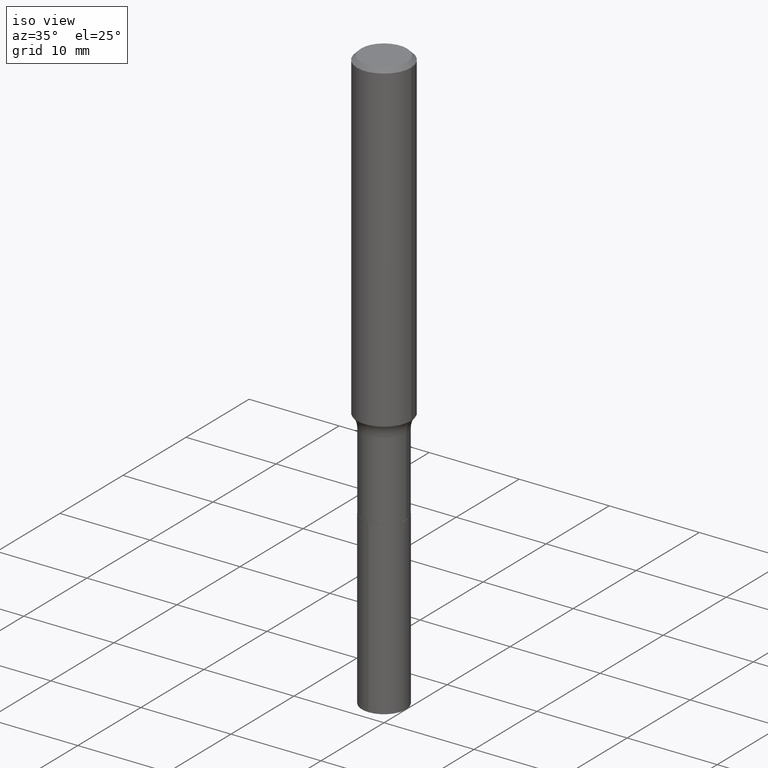
[diagram: clean part render]
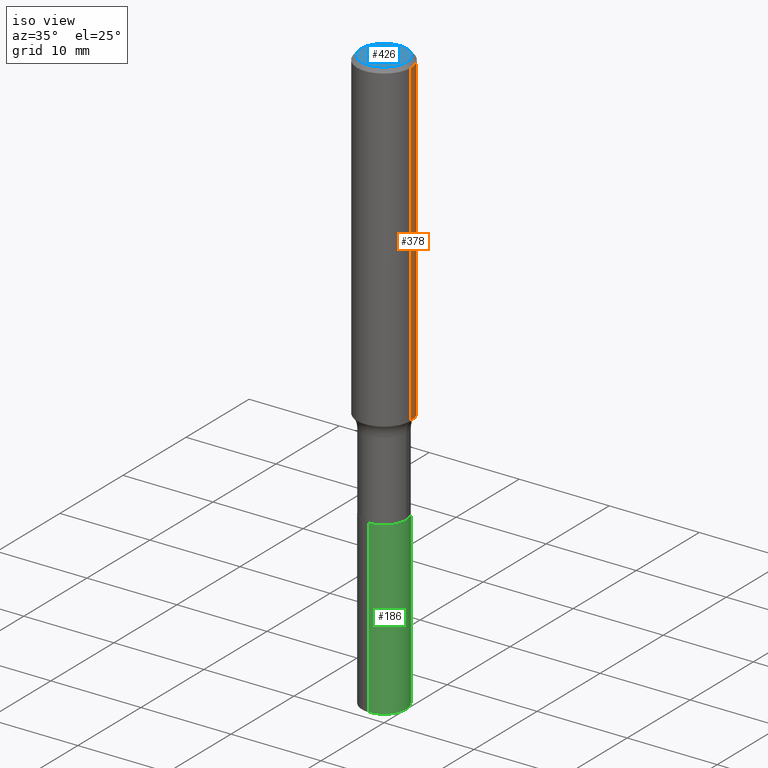
[diagram: same view with three faces highlighted in distinct colors, each labeled with its STEP entity id]
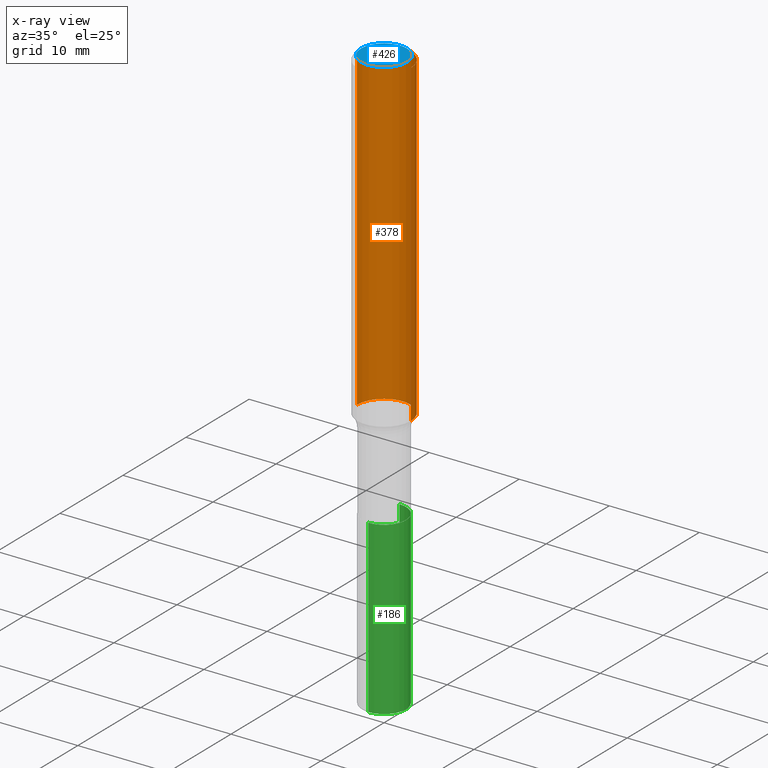
[diagram: x-ray of the same camera — body ghosted, the three highlighted faces saturated]
A machine part, iso view with three faces highlighted in distinct colors.
The next image is the same camera in x-ray (body ghosted, the three faces saturated) — at least one of them is partly hidden behind the body in this view.
Their STEP definitions:

[orange] entity #378 — the highlighted cylindrical surface (edge-blend (fillet) strip) has radius 2.9997 mm, axis along (-0, 0, 1).
#18 = DIRECTION ( 'NONE',  ( -2.445468806185136877E-29, 3.491481338843145188E-15, 1.000000000000000000 ) ) ;
#29 = CARTESIAN_POINT ( 'NONE',  ( 0.1181000000000001632, -5.758737046621654966E-15, -1.413167843543948310 ) ) ;
#33 = EDGE_LOOP ( 'NONE', ( #462, #42, #356, #127 ) ) ;
#42 = ORIENTED_EDGE ( 'NONE', *, *, #177, .T. ) ;
#86 = AXIS2_PLACEMENT_3D ( 'NONE', #372, #299, #191 ) ;
#127 = ORIENTED_EDGE ( 'NONE', *, *, #212, .F. ) ;
#172 = VECTOR ( 'NONE', #293, 39.37007874015748143 ) ;
#177 = EDGE_CURVE ( 'NONE', #335, #240, #387, .T. ) ;
#185 = CIRCLE ( 'NONE', #368, 0.1180999999999999966 ) ;
#187 = DIRECTION ( 'NONE',  ( 1.000000000000000000, -6.982962677686270655E-15, 0.000000000000000000 ) ) ;
#191 = DIRECTION ( 'NONE',  ( 1.000000000000000000, -6.982962677686266711E-15, 4.876176775795936353E-29 ) ) ;
#212 = EDGE_CURVE ( 'NONE', #305, #257, #217, .T. ) ;
#217 = LINE ( 'NONE', #363, #172 ) ;
#223 = FACE_OUTER_BOUND ( 'NONE', #33, .T. ) ;
#229 = CARTESIAN_POINT ( 'NONE',  ( -0.1181000000000000799, 8.391509709326788873E-16, -5.809262341591047988E-30 ) ) ;
#232 = CYLINDRICAL_SURFACE ( 'NONE', #86, 0.1181000000000000799 ) ;
#240 = VERTEX_POINT ( 'NONE', #398 ) ;
#243 = CIRCLE ( 'NONE', #268, 0.1181000000000001632 ) ;
#257 = VERTEX_POINT ( 'NONE', #434 ) ;
#262 = CARTESIAN_POINT ( 'NONE',  ( 3.455857879290642834E-29, -4.934049154386905126E-15, -1.413167843543948310 ) ) ;
#266 = DIRECTION ( 'NONE',  ( -2.445468806185136597E-29, 3.491481338843145583E-15, 1.000000000000000000 ) ) ;
#268 = AXIS2_PLACEMENT_3D ( 'NONE', #262, #367, #187 ) ;
#293 = DIRECTION ( 'NONE',  ( -2.445468806185136877E-29, 3.491481338843145188E-15, 1.000000000000000000 ) ) ;
#299 = DIRECTION ( 'NONE',  ( -2.445468806185136597E-29, 3.491481338843145583E-15, 1.000000000000000000 ) ) ;
#305 = VERTEX_POINT ( 'NONE', #29 ) ;
#307 = CARTESIAN_POINT ( 'NONE',  ( -0.1181000000000001632, -4.094898183454225351E-15, -1.413167843543948310 ) ) ;
#335 = VERTEX_POINT ( 'NONE', #307 ) ;
#337 = CARTESIAN_POINT ( 'NONE',  ( 4.332147990156996744E-31, -6.185159191760671627E-17, -0.01771500000000011260 ) ) ;
#356 = ORIENTED_EDGE ( 'NONE', *, *, #409, .F. ) ;
#363 = CARTESIAN_POINT ( 'NONE',  ( 0.1181000000000000799, -8.246878922347486570E-16, 5.758764772215004644E-30 ) ) ;
#367 = DIRECTION ( 'NONE',  ( -2.445468806185136597E-29, 3.491481338843145583E-15, 1.000000000000000000 ) ) ;
#368 = AXIS2_PLACEMENT_3D ( 'NONE', #337, #266, #441 ) ;
#372 = CARTESIAN_POINT ( 'NONE',  ( 0.000000000000000000, 0.000000000000000000, 0.000000000000000000 ) ) ;
#378 = ADVANCED_FACE ( 'NONE', ( #223 ), #232, .T. ) ;
#387 = LINE ( 'NONE', #229, #457 ) ;
#398 = CARTESIAN_POINT ( 'NONE',  ( -0.1180999999999999966, -1.658799402219576084E-15, -0.01771500000000011260 ) ) ;
#409 = EDGE_CURVE ( 'NONE', #257, #240, #185, .T. ) ;
#434 = CARTESIAN_POINT ( 'NONE',  ( 0.1180999999999999966, -8.865394841523547570E-16, -0.01771500000000011260 ) ) ;
#441 = DIRECTION ( 'NONE',  ( 1.000000000000000000, -6.982962677686266711E-15, 0.000000000000000000 ) ) ;
#457 = VECTOR ( 'NONE', #18, 39.37007874015748143 ) ;
#458 = EDGE_CURVE ( 'NONE', #305, #335, #243, .T. ) ;
#462 = ORIENTED_EDGE ( 'NONE', *, *, #458, .T. ) ;

[blue] entity #426 — the highlighted planar face has unit normal (0, -0, -1).
#19 = CARTESIAN_POINT ( 'NONE',  ( 7.015701749847187307E-46, -1.001656274515824970E-31, -2.868857591682589212E-17 ) ) ;
#23 = FACE_OUTER_BOUND ( 'NONE', #393, .T. ) ;
#40 = VERTEX_POINT ( 'NONE', #300 ) ;
#63 = DIRECTION ( 'NONE',  ( 2.438088387897960049E-29, -3.491481338843145188E-15, -1.000000000000000000 ) ) ;
#67 = DIRECTION ( 'NONE',  ( -1.000000000000000000, 6.982962677686265922E-15, -4.876176775795935793E-29 ) ) ;
#68 = EDGE_CURVE ( 'NONE', #40, #116, #164, .T. ) ;
#74 = DIRECTION ( 'NONE',  ( -2.445468806185136597E-29, 3.491481338843145583E-15, 1.000000000000000000 ) ) ;
#82 = AXIS2_PLACEMENT_3D ( 'NONE', #303, #74, #197 ) ;
#116 = VERTEX_POINT ( 'NONE', #348 ) ;
#119 = ORIENTED_EDGE ( 'NONE', *, *, #68, .T. ) ;
#164 = CIRCLE ( 'NONE', #248, 0.1003850000000000159 ) ;
#183 = DIRECTION ( 'NONE',  ( -2.445468806185136597E-29, 3.491481338843145583E-15, 1.000000000000000000 ) ) ;
#197 = DIRECTION ( 'NONE',  ( 1.000000000000000000, -6.982962677686266711E-15, 4.875668750515085695E-29 ) ) ;
#215 = DIRECTION ( 'NONE',  ( 1.000000000000000000, -6.982962677686266711E-15, 4.875668750515085695E-29 ) ) ;
#231 = CARTESIAN_POINT ( 'NONE',  ( 3.507850874923593654E-46, -5.008281372579124849E-32, -1.434428795841294606E-17 ) ) ;
#248 = AXIS2_PLACEMENT_3D ( 'NONE', #19, #183, #215 ) ;
#300 = CARTESIAN_POINT ( 'NONE',  ( 0.1003850000000000159, -7.803837484803599345E-16, -2.868857591682071522E-17 ) ) ;
#303 = CARTESIAN_POINT ( 'NONE',  ( 7.015701749847187307E-46, -1.001656274515824970E-31, -2.868857591682589212E-17 ) ) ;
#304 = AXIS2_PLACEMENT_3D ( 'NONE', #231, #63, #67 ) ;
#348 = CARTESIAN_POINT ( 'NONE',  ( -0.1003850000000000159, 7.319105043583386689E-16, -2.868857591683090262E-17 ) ) ;
#354 = ORIENTED_EDGE ( 'NONE', *, *, #488, .T. ) ;
#393 = EDGE_LOOP ( 'NONE', ( #354, #119 ) ) ;
#401 = PLANE ( 'NONE',  #304 ) ;
#426 = ADVANCED_FACE ( 'NONE', ( #23 ), #401, .F. ) ;
#453 = CIRCLE ( 'NONE', #82, 0.1003850000000000159 ) ;
#488 = EDGE_CURVE ( 'NONE', #116, #40, #453, .T. ) ;

[green] entity #186 — the highlighted cylindrical surface (edge-blend (fillet) strip) has radius 2.4498 mm, axis along (-0, 0, 1).
#2 = EDGE_CURVE ( 'NONE', #235, #397, #132, .T. ) ;
#4 = EDGE_LOOP ( 'NONE', ( #110, #343, #103, #318 ) ) ;
#6 = VERTEX_POINT ( 'NONE', #225 ) ;
#31 = AXIS2_PLACEMENT_3D ( 'NONE', #89, #169, #134 ) ;
#89 = CARTESIAN_POINT ( 'NONE',  ( 6.248508729631835986E-29, -8.951246779057046401E-15, -2.559431670518199642 ) ) ;
#103 = ORIENTED_EDGE ( 'NONE', *, *, #2, .F. ) ;
#108 = CARTESIAN_POINT ( 'NONE',  ( -6.735067502627961581E-16, -0.09645000000000632234, -1.810999999999999721 ) ) ;
#110 = ORIENTED_EDGE ( 'NONE', *, *, #271, .T. ) ;
#117 = EDGE_CURVE ( 'NONE', #6, #397, #344, .T. ) ;
#132 = CIRCLE ( 'NONE', #162, 0.09644999999999999407 ) ;
#134 = DIRECTION ( 'NONE',  ( -6.982962677686265922E-15, -1.000000000000000000, 5.664796254358243463E-15 ) ) ;
#144 = VECTOR ( 'NONE', #270, 39.37007874015748143 ) ;
#155 = CARTESIAN_POINT ( 'NONE',  ( 6.853184686406793016E-16, 0.09644999999999366580, -1.811000000000000165 ) ) ;
#157 = CARTESIAN_POINT ( 'NONE',  ( 6.853184686406608620E-16, 0.09644999999999369356, -1.811000000000000165 ) ) ;
#162 = AXIS2_PLACEMENT_3D ( 'NONE', #170, #336, #230 ) ;
#169 = DIRECTION ( 'NONE',  ( -2.431437355357483089E-29, 3.511575175048930123E-15, 1.000000000000000000 ) ) ;
#170 = CARTESIAN_POINT ( 'NONE',  ( 4.428744008001282238E-29, -6.323072704644935995E-15, -1.810999999999999943 ) ) ;
#178 = FACE_OUTER_BOUND ( 'NONE', #4, .T. ) ;
#186 = ADVANCED_FACE ( 'NONE', ( #178 ), #324, .T. ) ;
#199 = VECTOR ( 'NONE', #408, 39.37007874015748143 ) ;
#205 = CARTESIAN_POINT ( 'NONE',  ( 4.428744008001282238E-29, -6.323072704644935995E-15, -1.810999999999999943 ) ) ;
#225 = CARTESIAN_POINT ( 'NONE',  ( 6.853184686406793016E-16, 0.09644999999999109841, -2.559431670518200086 ) ) ;
#230 = DIRECTION ( 'NONE',  ( -6.982962677686265133E-15, -1.000000000000000000, 2.832398127179122126E-15 ) ) ;
#235 = VERTEX_POINT ( 'NONE', #327 ) ;
#258 = AXIS2_PLACEMENT_3D ( 'NONE', #205, #428, #291 ) ;
#270 = DIRECTION ( 'NONE',  ( -2.431437355357483089E-29, 3.511575175048929728E-15, 1.000000000000000000 ) ) ;
#271 = EDGE_CURVE ( 'NONE', #461, #6, #452, .T. ) ;
#291 = DIRECTION ( 'NONE',  ( -6.982962677686265922E-15, -1.000000000000000000, 2.832398127179121732E-15 ) ) ;
#318 = ORIENTED_EDGE ( 'NONE', *, *, #347, .F. ) ;
#324 = CYLINDRICAL_SURFACE ( 'NONE', #258, 0.09645000000000000795 ) ;
#327 = CARTESIAN_POINT ( 'NONE',  ( -6.735067502627959609E-16, -0.09645000000000630846, -1.810999999999999721 ) ) ;
#333 = CARTESIAN_POINT ( 'NONE',  ( -6.735067502627781129E-16, -0.09645000000000898688, -2.559431670518198754 ) ) ;
#336 = DIRECTION ( 'NONE',  ( -2.431437355357483089E-29, 3.511575175048930123E-15, 1.000000000000000000 ) ) ;
#343 = ORIENTED_EDGE ( 'NONE', *, *, #117, .T. ) ;
#344 = LINE ( 'NONE', #157, #199 ) ;
#347 = EDGE_CURVE ( 'NONE', #461, #235, #400, .T. ) ;
#397 = VERTEX_POINT ( 'NONE', #155 ) ;
#400 = LINE ( 'NONE', #108, #144 ) ;
#408 = DIRECTION ( 'NONE',  ( -2.431437355357483089E-29, 3.511575175048929728E-15, 1.000000000000000000 ) ) ;
#428 = DIRECTION ( 'NONE',  ( -2.431437355357483089E-29, 3.511575175048930123E-15, 1.000000000000000000 ) ) ;
#452 = CIRCLE ( 'NONE', #31, 0.09645000000000000795 ) ;
#461 = VERTEX_POINT ( 'NONE', #333 ) ;